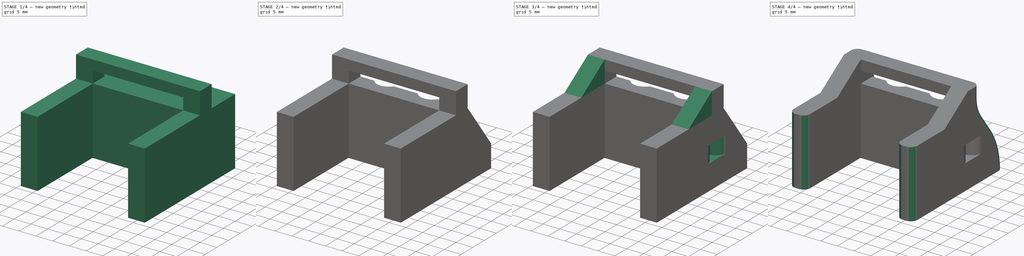
[diagram: build sequence overview — one tinted view per stage of 4, left to right]
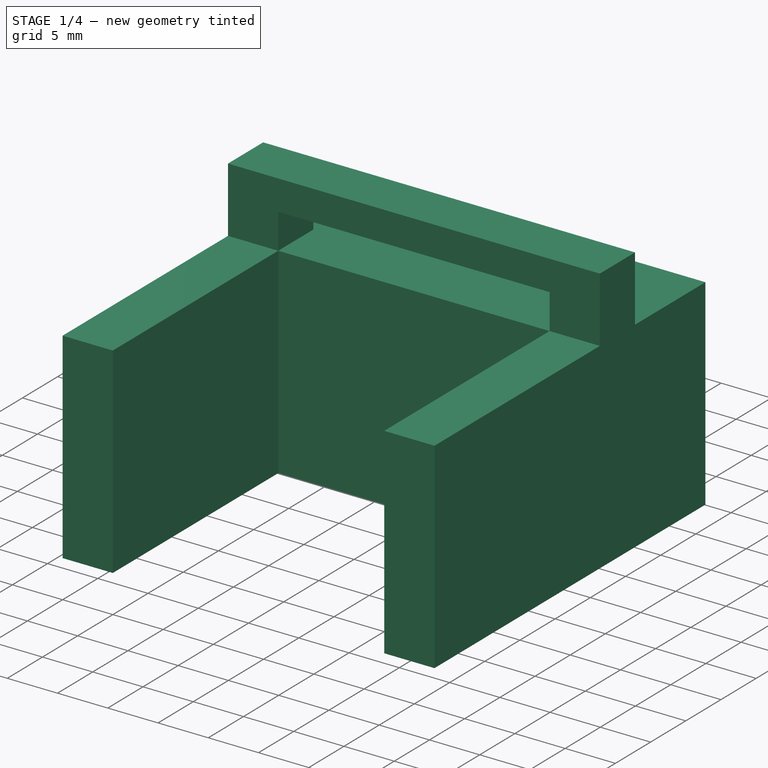
[diagram: stage 1 of 4 — iso view after this stage's code; geometry added in this stage tinted green]
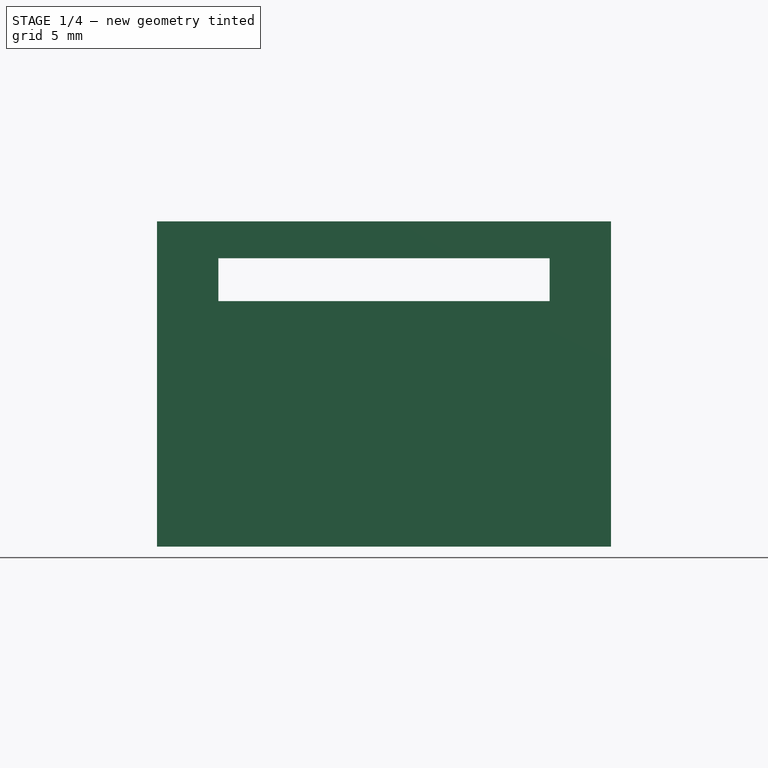
[diagram: stage 1 of 4 — front view after this stage's code; geometry added in this stage tinted green]
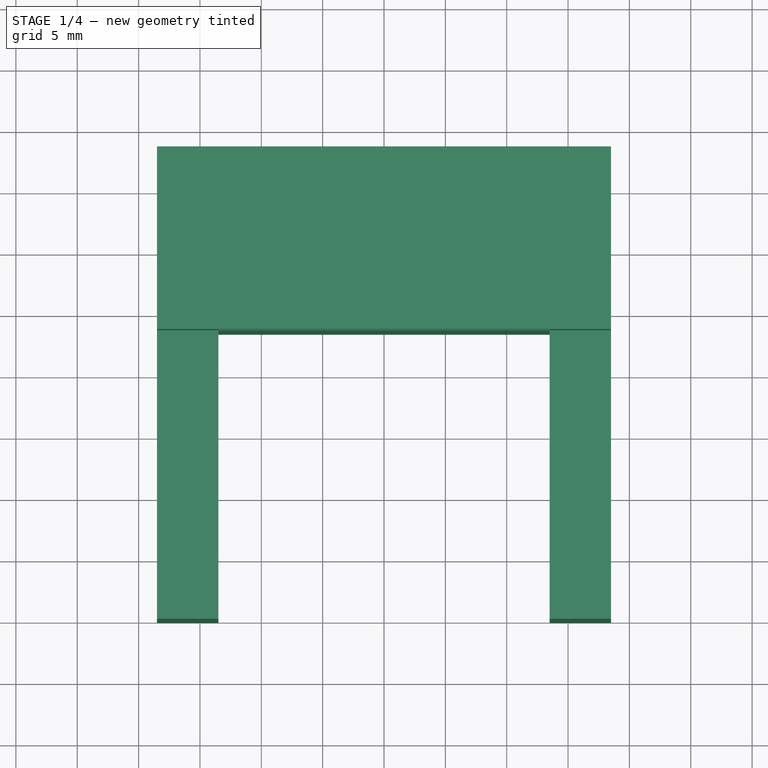
[diagram: stage 1 of 4 — top view after this stage's code; geometry added in this stage tinted green]
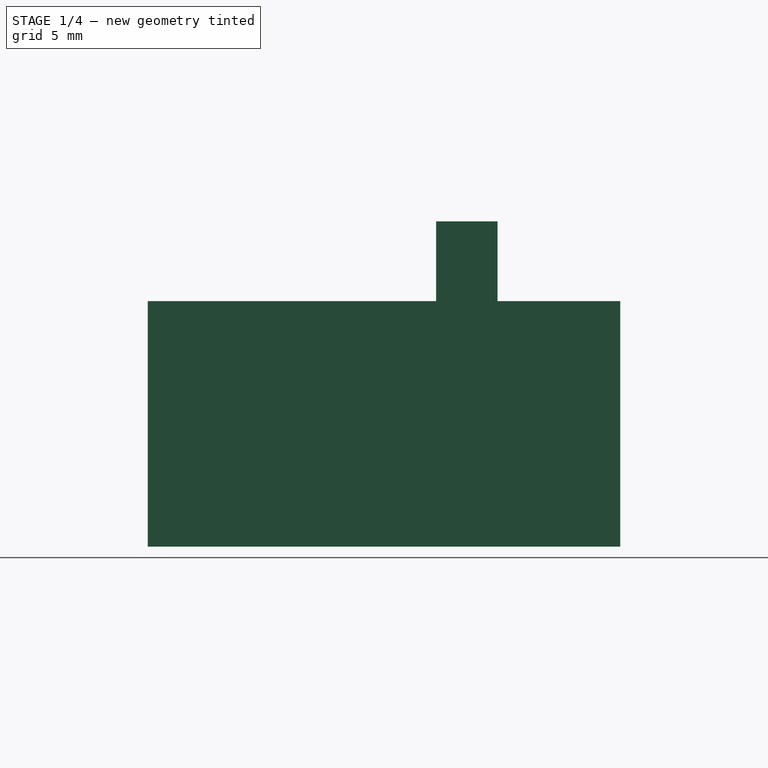
[diagram: stage 1 of 4 — right view after this stage's code; geometry added in this stage tinted green]
FCSTD DOCUMENT  (FreeCAD 0.18R16131 (Git))
Label: IECSocketClipHalf
License: All rights reserved
LicenseURL: http://en.wikipedia.org/wiki/All_rights_reserved
objects: Sketcher::SketchObject×8, PartDesign::Pocket×6, PartDesign::Fillet×4, PartDesign::Pad×3, PartDesign::Body×1, App::Part×1
note: 31 computed .brp shape members not serialized (recipe doc carries the construction recipe); baked Part::Feature solids carry a one-line shape summary decoded from their .brp

FEATURE [Sketcher::SketchObject] Sketch
  MapMode = 5
  Support = -> [XY_Plane001]
  sketch-geometry (8):
    g0: LineSegment StartX=-18.5 StartY=0 StartZ=0 EndX=-18.5 EndY=38.5 EndZ=0
    g1: LineSegment StartX=-18.5 StartY=38.5 StartZ=0 EndX=18.5 EndY=38.5 EndZ=0
    g2: LineSegment StartX=18.5 StartY=38.5 StartZ=0 EndX=18.5 EndY=0 EndZ=0
    g3: LineSegment StartX=-18.5 StartY=0 StartZ=0 EndX=-13.5 EndY=0 EndZ=0
    g4: LineSegment StartX=-13.5 StartY=0 StartZ=0 EndX=-13.5 EndY=23.5 EndZ=0
    g5: LineSegment StartX=-13.5 StartY=23.5 StartZ=0 EndX=13.5 EndY=23.5 EndZ=0
    g6: LineSegment StartX=13.5 StartY=23.5 StartZ=0 EndX=13.5 EndY=0 EndZ=0
    g7: LineSegment StartX=13.5 StartY=0 StartZ=0 EndX=18.5 EndY=0 EndZ=0
  constraints (22):
    c: Vertical(g0)
    c: Coincident(g1,g0)
    c: Coincident(g2,g1)
    c: PointOnObject(g2,g-1)
    c: Vertical(g2)
    c: Coincident(g3,g0)
    c: PointOnObject(g3,g-1)
    c: Coincident(g4,g3)
    c: Vertical(g4)
    c: Coincident(g5,g4)
    c: Coincident(g6,g5)
    c: Coincident(g7,g6)
    c: Coincident(g7,g2)
    c: Horizontal(g7)
    c: Symmetric(g4,g5,g-2)
    c: Symmetric(g0,g1,g-2)
    c: Distance(g4) = 23.5
    c: Distance(g5) = 27
    c: PointOnObject(g0,g-1)
    c: Distance(g3) = 5
    c: Equal(g7,g3)
    c: Distance(g4,g1) = 15
FEATURE [PartDesign::Pad] Pad
  Length = 20
  Length2 = 100
  Profile = -> Sketch
  Reversed = true
  Type = 0
FEATURE [Sketcher::SketchObject] Sketch001
  MapMode = 5
  Support = -> [XY_Plane001]
  sketch-geometry (4):
    g0: LineSegment StartX=-18.5 StartY=23.5 StartZ=0 EndX=18.5 EndY=23.5 EndZ=0
    g1: LineSegment StartX=18.5 StartY=23.5 StartZ=0 EndX=18.5 EndY=28.5 EndZ=0
    g2: LineSegment StartX=18.5 StartY=28.5 StartZ=0 EndX=-18.5 EndY=28.5 EndZ=0
    g3: LineSegment StartX=-18.5 StartY=28.5 StartZ=0 EndX=-18.5 EndY=23.5 EndZ=0
  constraints (11):
    c: Coincident(g0,g1)
    c: Coincident(g1,g2)
    c: Coincident(g2,g3)
    c: Coincident(g3,g0)
    c: Horizontal(g0)
    c: Vertical(g1)
    c: Vertical(g3)
    c: Symmetric(g2,g1,g-2)
    c: Distance(g2) = 37
    c: Distance(g3) = 5
    c: DistanceY(g-1,g0) = 23.5
FEATURE [PartDesign::Pad] Pad001
  BaseFeature = -> Pad
  Length = 6.5
  Length2 = 100
  Profile = -> Sketch001
  Type = 0
FEATURE [Sketcher::SketchObject] Sketch003
  MapMode = 5
  Support = -> [XY_Plane001]
  sketch-geometry (4):
    g0: LineSegment StartX=-13.5 StartY=0 StartZ=0 EndX=13.5 EndY=0 EndZ=0
    g1: LineSegment StartX=13.5 StartY=0 StartZ=0 EndX=13.5 EndY=28.5 EndZ=0
    g2: LineSegment StartX=13.5 StartY=28.5 StartZ=0 EndX=-13.5 EndY=28.5 EndZ=0
    g3: LineSegment StartX=-13.5 StartY=28.5 StartZ=0 EndX=-13.5 EndY=0 EndZ=0
  constraints (11):
    c: Coincident(g0,g1)
    c: Coincident(g1,g2)
    c: Coincident(g2,g3)
    c: Coincident(g3,g0)
    c: Horizontal(g0)
    c: Vertical(g1)
    c: Vertical(g3)
    c: Symmetric(g2,g1,g-2)
    c: Distance(g2) = 27
    c: Distance(g3) = 28.5
    c: PointOnObject(g0,g-1)
FEATURE [PartDesign::Pocket] Pocket001
  BaseFeature = -> Pad001
  Length = 3.5
  Length2 = 100
  Profile = -> Sketch003
  Reversed = true
  Type = 0
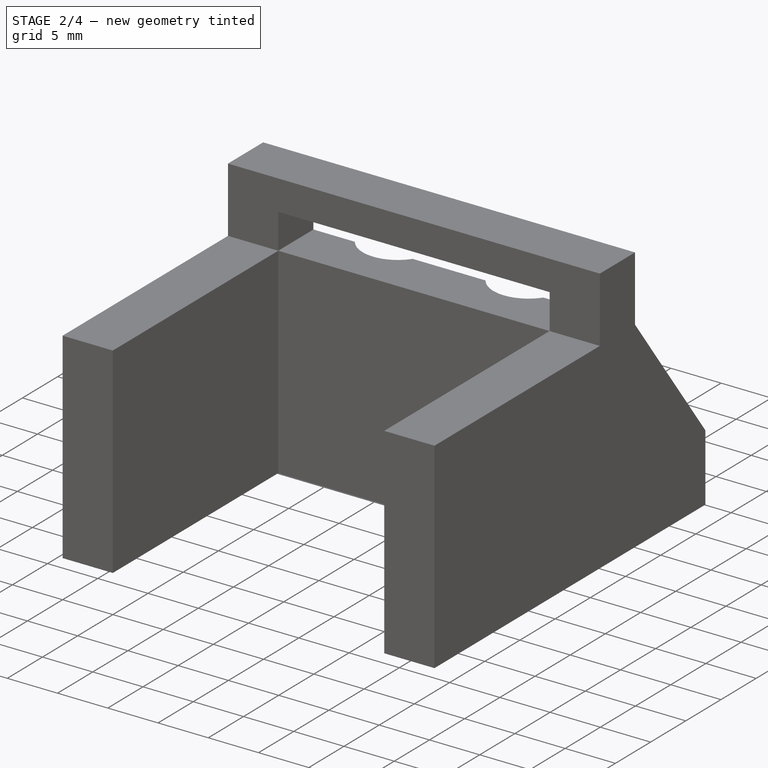
[diagram: stage 2 of 4 — iso view after this stage's code; geometry added in this stage tinted green]
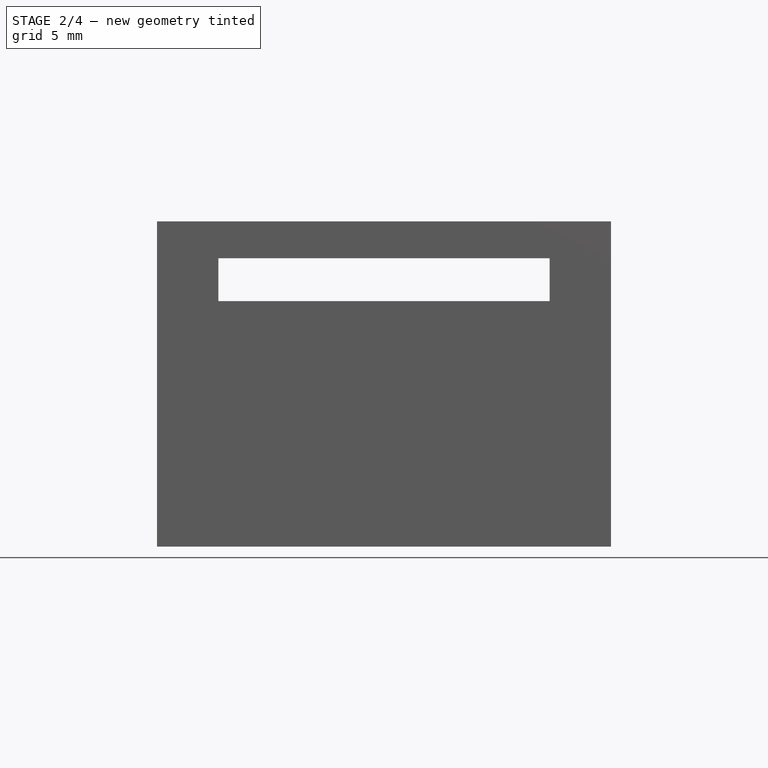
[diagram: stage 2 of 4 — front view after this stage's code; geometry added in this stage tinted green]
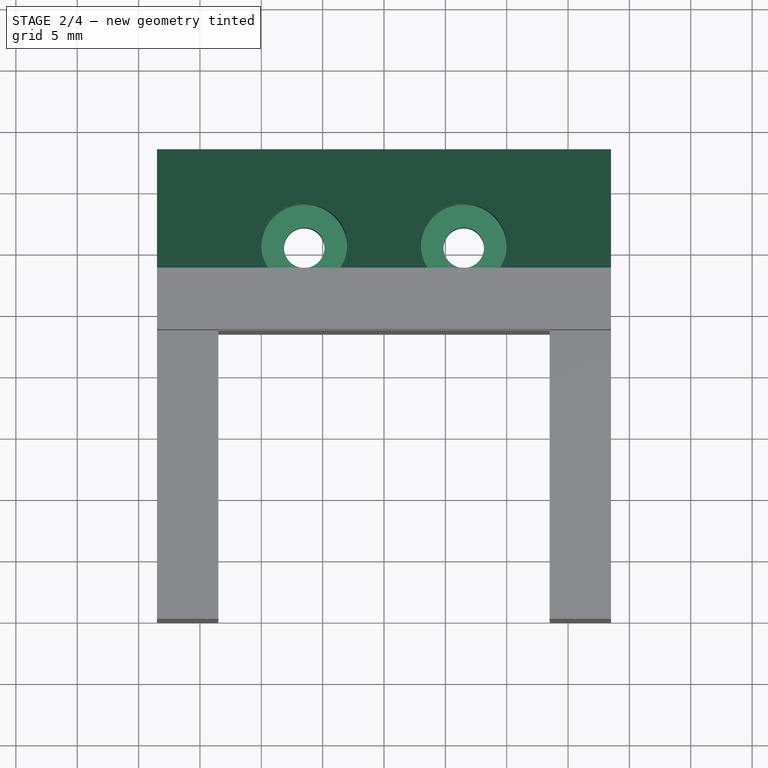
[diagram: stage 2 of 4 — top view after this stage's code; geometry added in this stage tinted green]
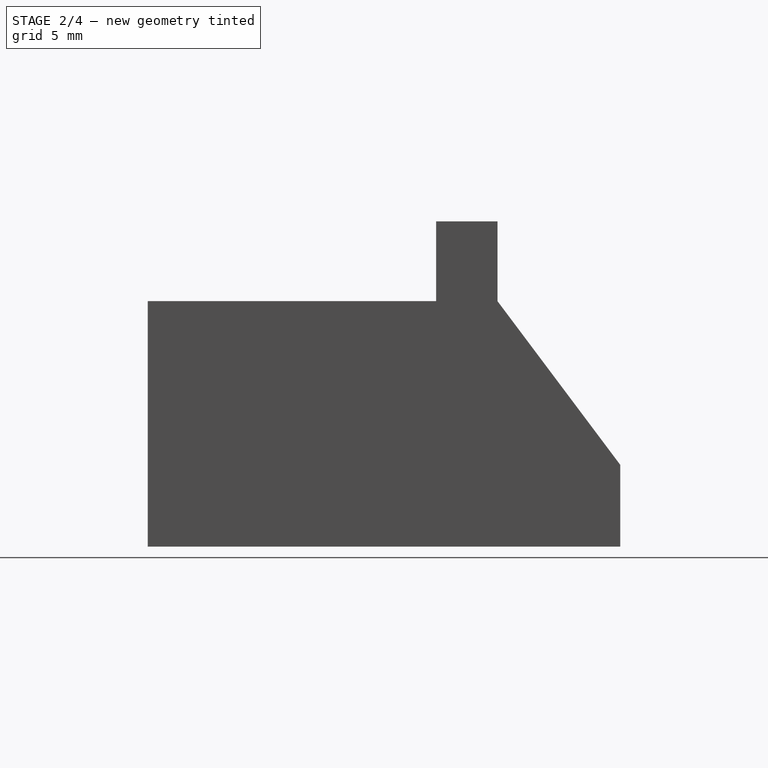
[diagram: stage 2 of 4 — right view after this stage's code; geometry added in this stage tinted green]
FEATURE [Sketcher::SketchObject] Sketch004
  MapMode = 5
  Support = -> [XY_Plane001]
  sketch-geometry (2):
    g0: Circle CenterX=-6.5 CenterY=30.5 CenterZ=0 NormalX=0 NormalY=0 NormalZ=1 AngleXU=0 Radius=1.65
    g1: Circle CenterX=6.5 CenterY=30.5 CenterZ=0 NormalX=0 NormalY=0 NormalZ=1 AngleXU=0 Radius=1.65
  constraints (5):
    c: Symmetric(g1,g0,g-2)
    c: Equal(g0,g1)
    c: Radius(g0) = 1.65
    c: DistanceX(g-2,g1) = 6.5
    c: DistanceY(g-1,g1) = 30.5
FEATURE [PartDesign::Pocket] Pocket002
  BaseFeature = -> Pocket001
  Length = 5
  Length2 = 100
  Profile = -> Sketch004
  Type = 1
FEATURE [Sketcher::SketchObject] Sketch005
  ExternalGeometry = -> [Sketch004]
  MapMode = 5
  Support = -> [XY_Plane001]
  sketch-geometry (2):
    g0: Circle CenterX=-6.5 CenterY=30.5 CenterZ=0 NormalX=0 NormalY=0 NormalZ=1 AngleXU=0 Radius=3.5
    g1: Circle CenterX=6.5 CenterY=30.5 CenterZ=0 NormalX=0 NormalY=0 NormalZ=1 AngleXU=0 Radius=3.5
  constraints (4):
    c: Equal(g0,g1)
    c: Radius(g0) = 3.5
    c: Coincident(g0,g-3)
    c: Coincident(g1,g-4)
FEATURE [PartDesign::Pocket] Pocket003
  BaseFeature = -> Pocket002
  Length = 14.5
  Length2 = 100
  Profile = -> Sketch005
  Type = 0
FEATURE [Sketcher::SketchObject] Sketch006
  MapMode = 5
  Placement = pos=(0,0,0) rot=(0.57735,0.57735,0.57735;2.0944rad)
  Support = -> [YZ_Plane001]
  sketch-geometry (3):
    g0: LineSegment StartX=28.5 StartY=0 StartZ=0 EndX=43.5 EndY=0 EndZ=0
    g1: LineSegment StartX=43.5 StartY=0 StartZ=0 EndX=43.5 EndY=-20 EndZ=0
    g2: LineSegment StartX=28.5 StartY=0 StartZ=0 EndX=43.5 EndY=-20 EndZ=0
  constraints (9):
    c: Horizontal(g0)
    c: Coincident(g1,g0)
    c: Vertical(g1)
    c: Coincident(g2,g0)
    c: Coincident(g2,g1)
    c: Distance(g1) = 20
    c: PointOnObject(g0,g-1)
    c: DistanceX(g-2,g0) = 28.5
    c: Distance(g0) = 15
FEATURE [PartDesign::Pocket] Pocket004
  BaseFeature = -> Pocket003
  Length = 5
  Length2 = 100
  Midplane = true
  Profile = -> Sketch006
  Type = 1
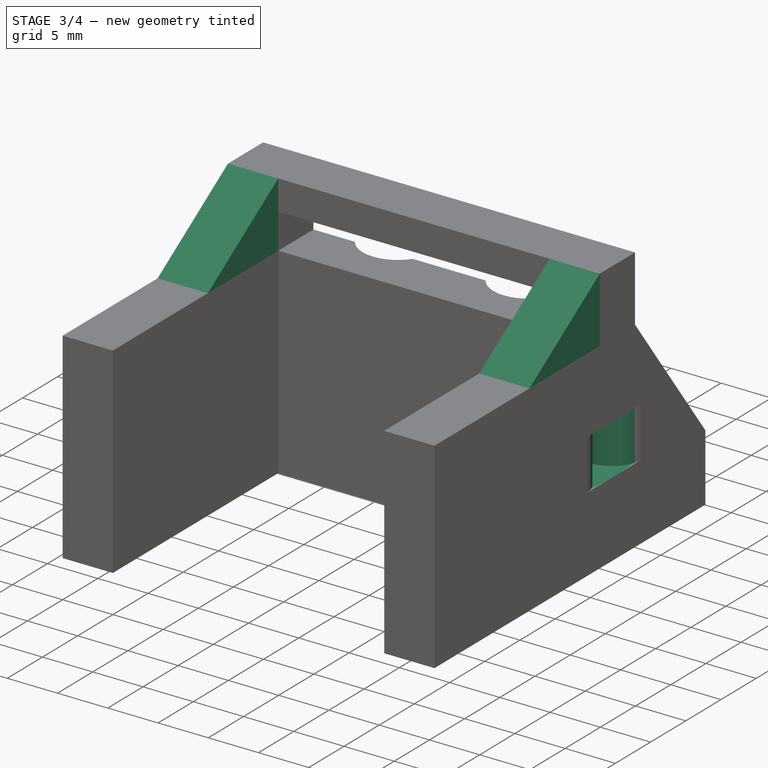
[diagram: stage 3 of 4 — iso view after this stage's code; geometry added in this stage tinted green]
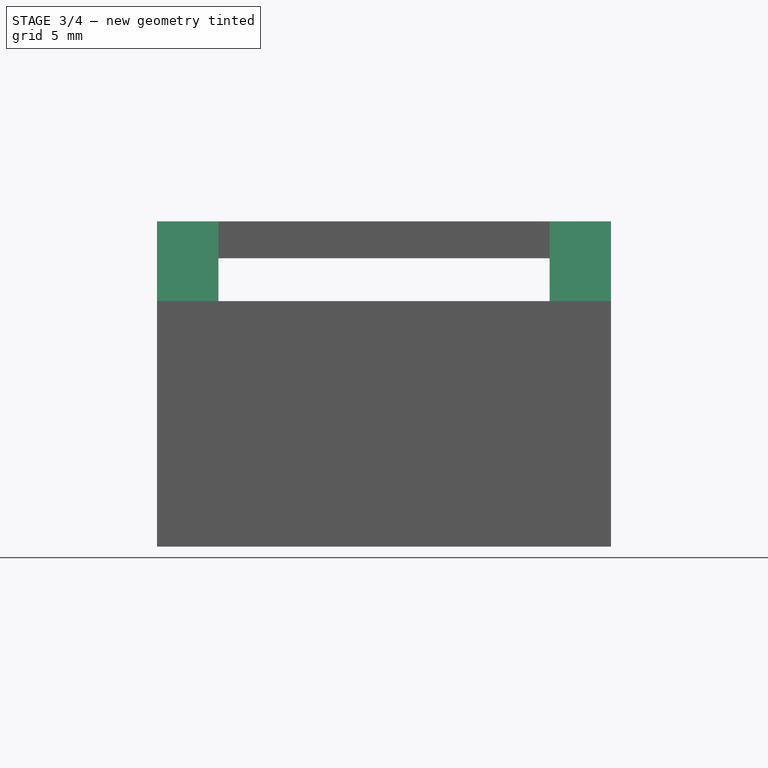
[diagram: stage 3 of 4 — front view after this stage's code; geometry added in this stage tinted green]
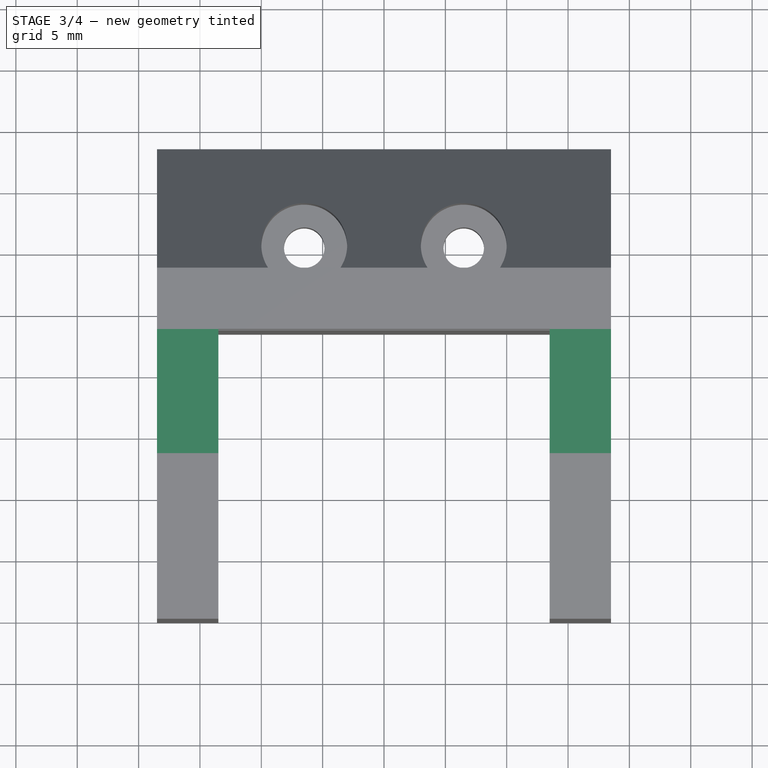
[diagram: stage 3 of 4 — top view after this stage's code; geometry added in this stage tinted green]
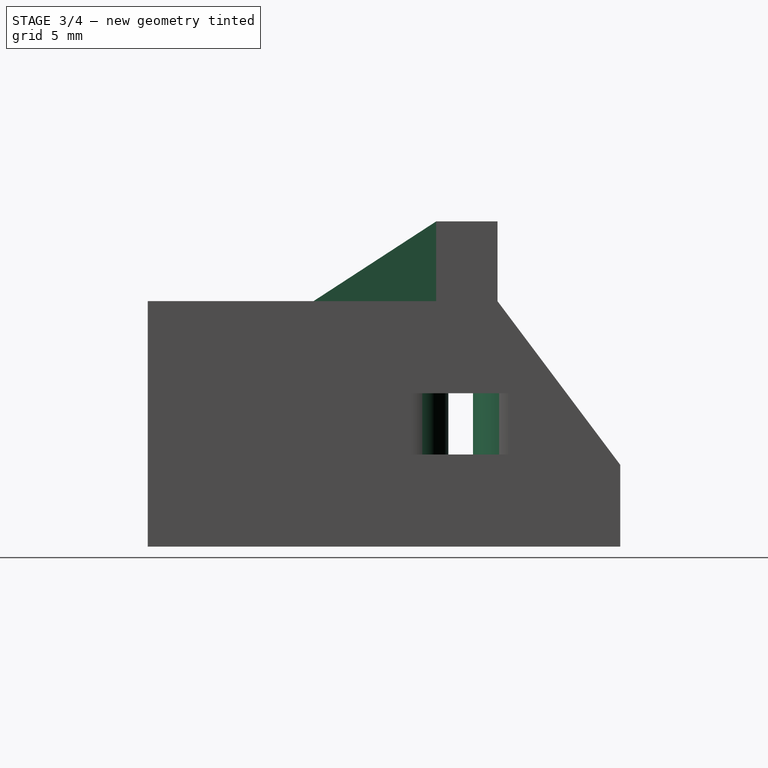
[diagram: stage 3 of 4 — right view after this stage's code; geometry added in this stage tinted green]
FEATURE [Sketcher::SketchObject] Sketch007
  MapMode = 5
  Placement = pos=(0,0,0) rot=(0.57735,0.57735,0.57735;2.0944rad)
  Support = -> [YZ_Plane001]
  sketch-geometry (3):
    g0: LineSegment StartX=13.5 StartY=0 StartZ=0 EndX=23.5 EndY=0 EndZ=0
    g1: LineSegment StartX=13.5 StartY=0 StartZ=0 EndX=23.5 EndY=6.5 EndZ=0
    g2: LineSegment StartX=23.5 StartY=6.5 StartZ=0 EndX=23.5 EndY=0 EndZ=0
  constraints (9):
    c: Coincident(g1,g0)
    c: Coincident(g2,g1)
    c: Coincident(g2,g0)
    c: Vertical(g2)
    c: Horizontal(g0)
    c: PointOnObject(g0,g-1)
    c: Distance(g2) = 6.5
    c: DistanceX(g-2,g0) = 23.5
    c: Distance(g0) = 10
FEATURE [PartDesign::Pad] Pad002
  BaseFeature = -> Pocket004
  Length = 37
  Length2 = 100
  Midplane = true
  Profile = -> Sketch007
  Type = 0
FEATURE [PartDesign::Pocket] Pocket
  BaseFeature = -> Pad002
  Length = 27
  Length2 = 100
  Midplane = true
  Profile = -> Sketch007
  Type = 0
FEATURE [Sketcher::SketchObject] Sketch008
  MapMode = 5
  Placement = pos=(0,0,0) rot=(0.57735,0.57735,0.57735;2.0944rad)
  Support = -> [YZ_Plane001]
  sketch-geometry (4):
    g0: LineSegment StartX=24.5 StartY=-12.5 StartZ=0 EndX=26.5 EndY=-12.5 EndZ=0
    g1: LineSegment StartX=26.5 StartY=-12.5 StartZ=0 EndX=26.5 EndY=-7.5 EndZ=0
    g2: LineSegment StartX=26.5 StartY=-7.5 StartZ=0 EndX=24.5 EndY=-7.5 EndZ=0
    g3: LineSegment StartX=24.5 StartY=-7.5 StartZ=0 EndX=24.5 EndY=-12.5 EndZ=0
  constraints (12):
    c: Coincident(g0,g1)
    c: Coincident(g1,g2)
    c: Coincident(g2,g3)
    c: Coincident(g3,g0)
    c: Horizontal(g0)
    c: Horizontal(g2)
    c: Vertical(g1)
    c: Vertical(g3)
    c: Distance(g3) = 5
    c: Distance(g0) = 2
    c: DistanceY(g-1,g0) = -12.5
    c: DistanceX(g-2,g0) = 24.5
FEATURE [PartDesign::Pocket] Pocket005
  BaseFeature = -> Pocket
  Length = 5
  Length2 = 100
  Midplane = true
  Profile = -> Sketch008
  Type = 1
FEATURE [PartDesign::Fillet] Fillet
  Base = -> Pocket005 [Edge48,Edge11,Edge44,Edge9]
  BaseFeature = -> Pocket005
  Radius = 3
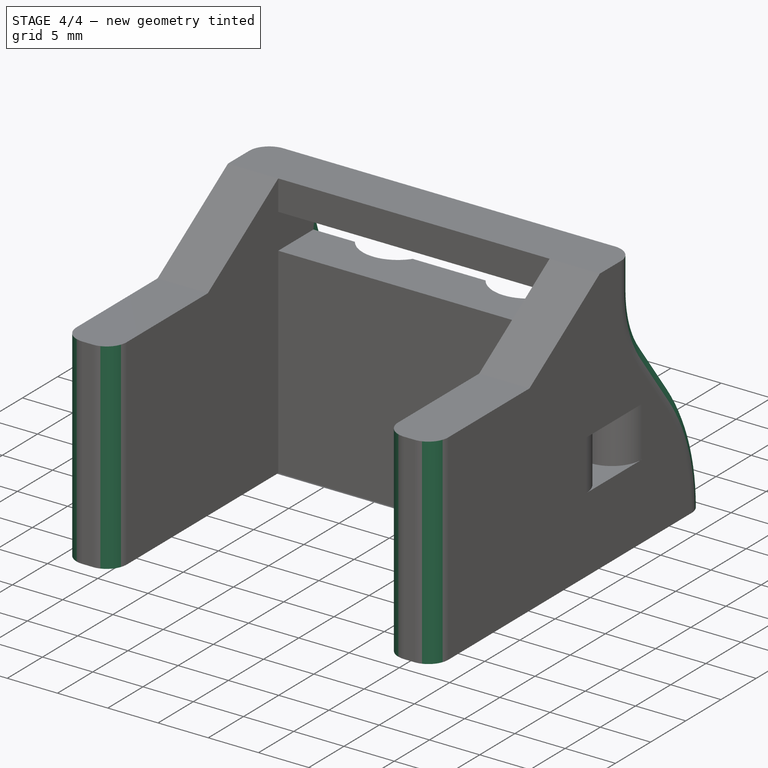
[diagram: stage 4 of 4 — iso view after this stage's code; geometry added in this stage tinted green]
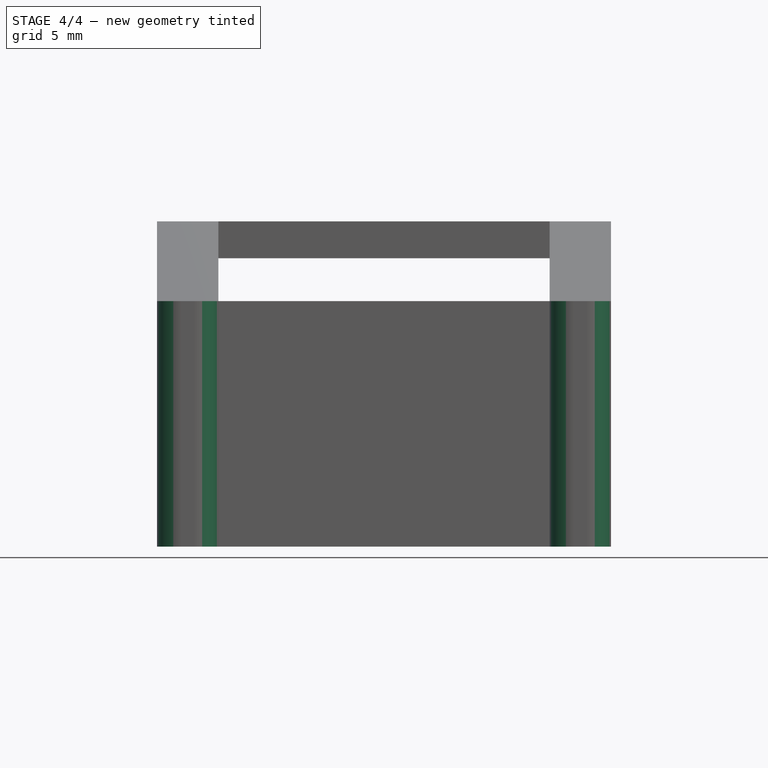
[diagram: stage 4 of 4 — front view after this stage's code; geometry added in this stage tinted green]
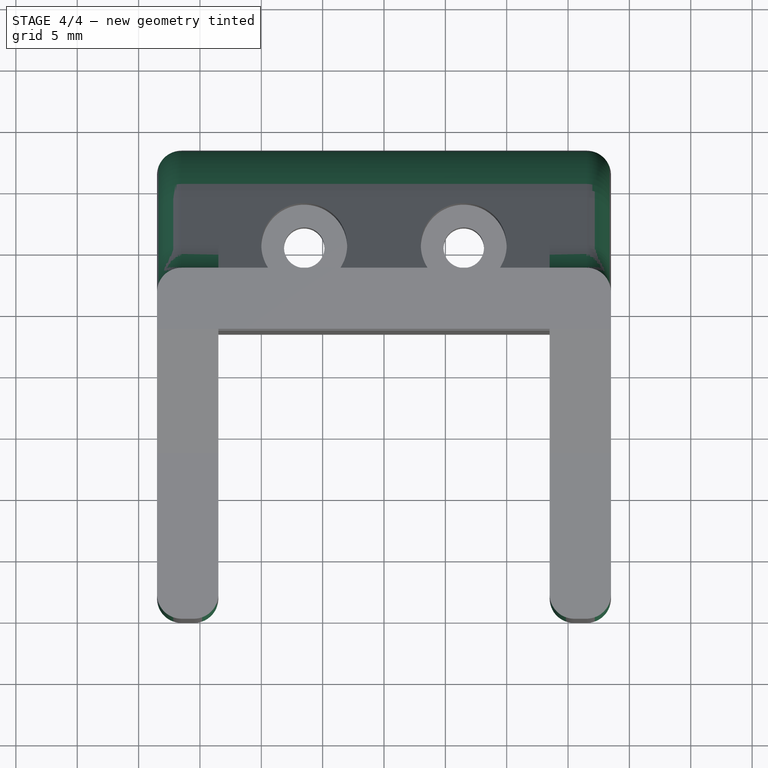
[diagram: stage 4 of 4 — top view after this stage's code; geometry added in this stage tinted green]
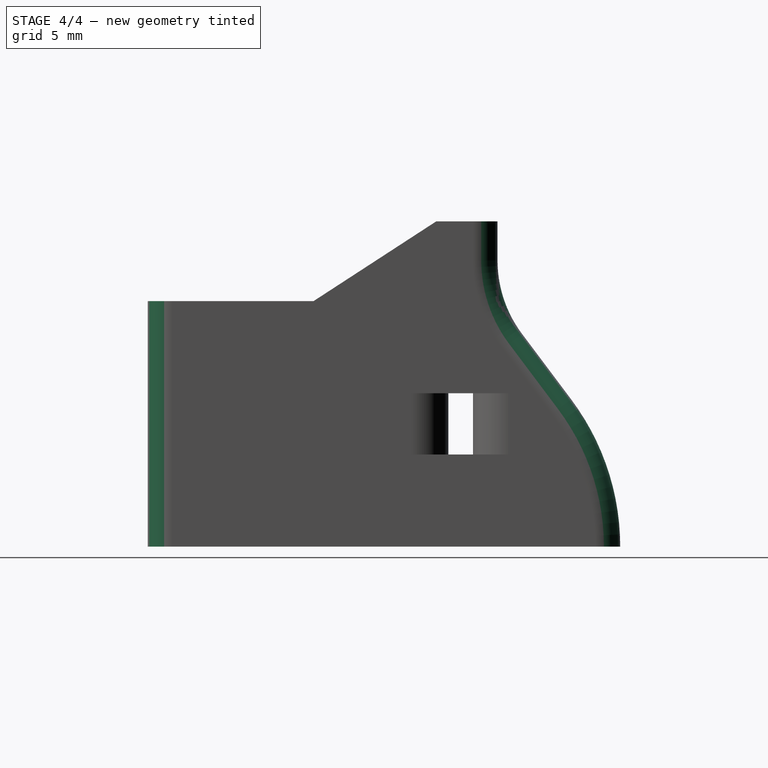
[diagram: stage 4 of 4 — right view after this stage's code; geometry added in this stage tinted green]
FEATURE [PartDesign::Fillet] Fillet001
  Base = -> Fillet [Edge64,Edge56]
  BaseFeature = -> Fillet
  Radius = 9.99
FEATURE [PartDesign::Fillet] Fillet002
  Base = -> Fillet001 [Edge27]
  BaseFeature = -> Fillet001
  Radius = 19.99
FEATURE [PartDesign::Fillet] Fillet003
  Base = -> Fillet002 [Edge32,Edge2,Edge77,Edge109,Edge50,Edge8]
  BaseFeature = -> Fillet002
  Radius = 2
FEATURE [PartDesign::Body] Body
  Group = -> [Sketch,Pad,Sketch001,Pad001,Sketch003,Pocket001,Sketch004,Pocket002,Sketch005,Pocket003,Sketch006,Pocket004,Sketch007,Pad002,Pocket,Sketch008,Pocket005,Fillet,Fillet001,Fillet002,Fillet003]
  Origin = -> Origin001
  Tip = -> Fillet003
FEATURE [App::Part] Part
  Group = -> [Body]
  Origin = -> Origin
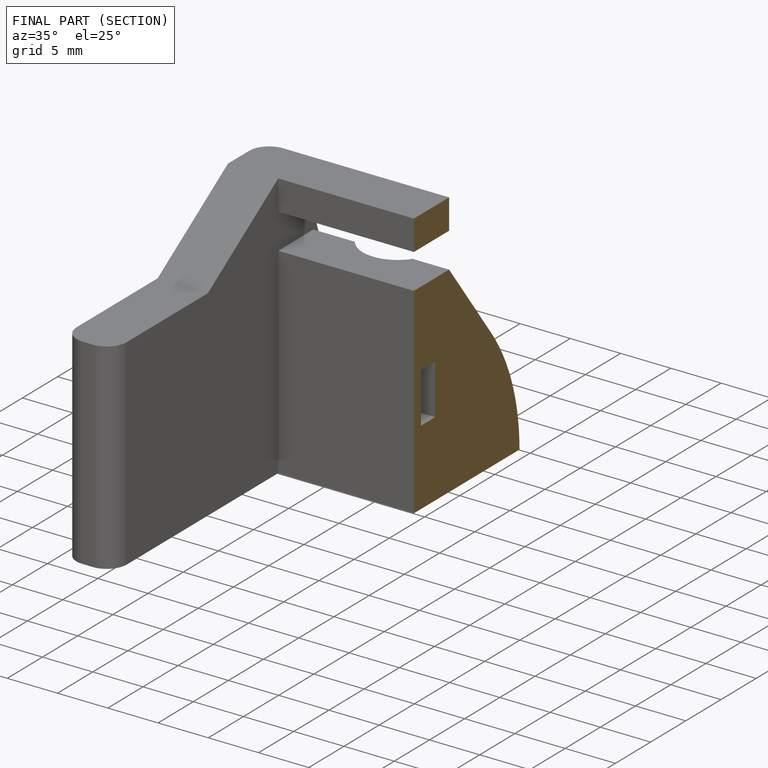
[diagram: finished part — half-section view (interior)]
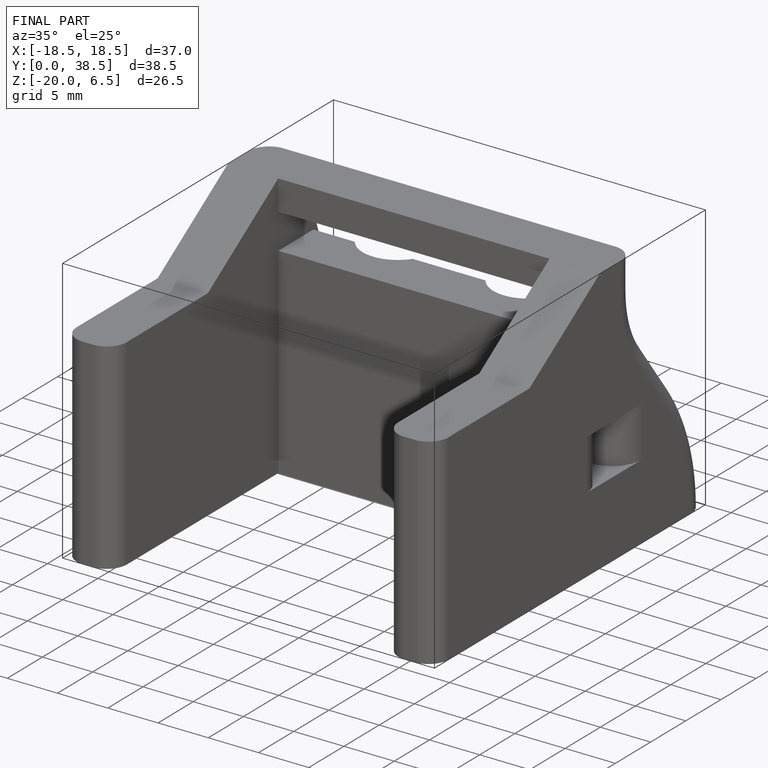
[diagram: finished part — iso view with bounding-box wireframe]
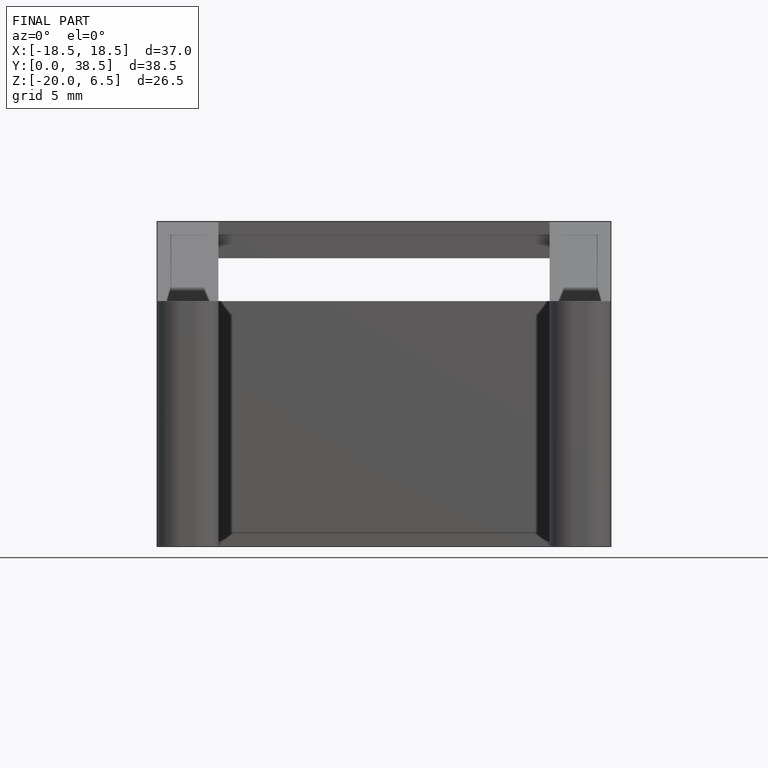
[diagram: finished part — front view with bounding-box wireframe]
